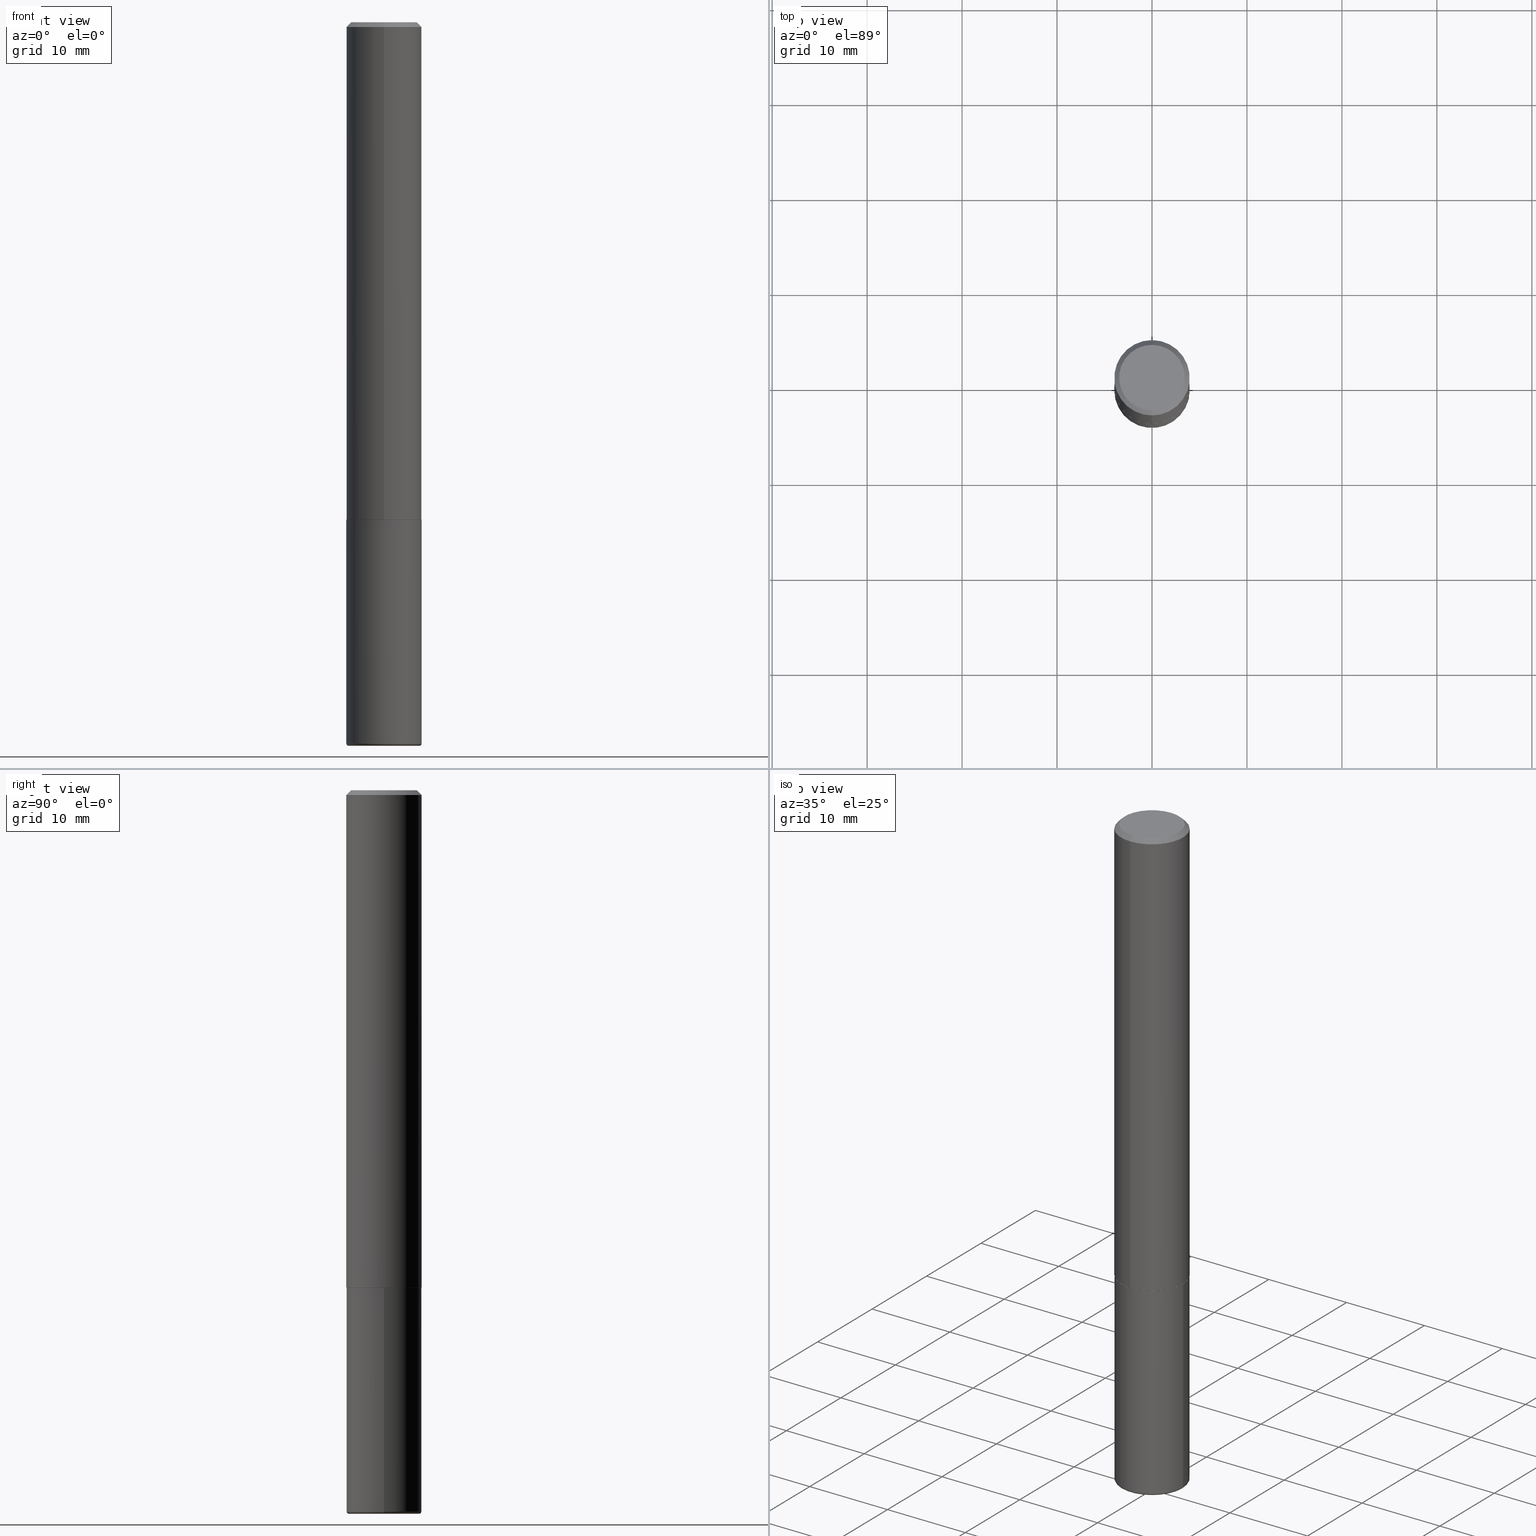
[diagram: canonical four-view strip — front | top / right | iso, engineering-drawing reading convention]
A machine part, canonical four-view strip (front | top / right | iso — engineering-drawing reading convention). The complete STEP part file that produces these views, byte-faithful:
ISO-10303-21;
HEADER;
FILE_DESCRIPTION (( 'STEP AP203' ),
    '1' );
FILE_NAME ('37451.STEP',
    '2024-03-02T01:34:21',
    ( '' ),
    ( '' ),
    'SwSTEP 2.0',
    'SolidWorks 2023',
    '' );
FILE_SCHEMA (( 'CONFIG_CONTROL_DESIGN' ));
ENDSEC;

DATA;
#1 = ORIENTED_EDGE ( 'NONE', *, *, #391, .T. ) ;
#2 = CIRCLE ( 'NONE', #186, 0.1562500000000002776 ) ;
#3 = CARTESIAN_POINT ( 'NONE',  ( 2.190428889620163364E-45, -3.128101894001013777E-31, -8.958164292007245599E-17 ) ) ;
#4 = CC_DESIGN_PERSON_AND_ORGANIZATION_ASSIGNMENT ( #103, #36, ( #142 ) ) ;
#5 = APPROVAL_DATE_TIME ( #163, #128 ) ;
#6 = DATE_TIME_ROLE ( 'creation_date' ) ;
#7 = DIMENSIONAL_EXPONENTS ( 1.000000000000000000, 0.000000000000000000, 0.000000000000000000, 0.000000000000000000, 0.000000000000000000, 0.000000000000000000, 0.000000000000000000 ) ;
#8 = CIRCLE ( 'NONE', #195, 0.1562500000000000000 ) ;
#9 = CIRCLE ( 'NONE', #63, 0.1552499999999999991 ) ;
#10 = ORIENTED_EDGE ( 'NONE', *, *, #179, .T. ) ;
#11 = CARTESIAN_POINT ( 'NONE',  ( -0.1562500000000000000, -7.710131707627340889E-15, -2.062500000000000000 ) ) ;
#12 = CIRCLE ( 'NONE', #74, 0.1562500000000000000 ) ;
#13 = VECTOR ( 'NONE', #159, 39.37007874015748854 ) ;
#14 = CC_DESIGN_APPROVAL ( #128, ( #142 ) ) ;
#15 = CARTESIAN_POINT ( 'NONE',  ( -1.091087918388479962E-15, -0.1562500000000001388, 5.456094630612559989E-16 ) ) ;
#16 = CC_DESIGN_PERSON_AND_ORGANIZATION_ASSIGNMENT ( #395, #329, ( #360 ) ) ;
#17 = CALENDAR_DATE ( 2024, 1, 3 ) ;
#18 = ORIENTED_EDGE ( 'NONE', *, *, #54, .T. ) ;
#19 = DIRECTION ( 'NONE',  ( 4.937700262164540942E-15, 0.7071067811865441310, -0.7071067811865509034 ) ) ;
#20 = LINE ( 'NONE', #306, #39 ) ;
#21 = VERTEX_POINT ( 'NONE', #384 ) ;
#22 = AXIS2_PLACEMENT_3D ( 'NONE', #231, #394, #110 ) ;
#23 = CARTESIAN_POINT ( 'NONE',  ( 5.043175630159489045E-29, -7.202044912408573467E-15, -2.062500000000000000 ) ) ;
#24 = EDGE_CURVE ( 'NONE', #55, #41, #253, .T. ) ;
#25 = CARTESIAN_POINT ( 'NONE',  ( 1.091087918388479568E-15, 0.1562499999999999445, -0.02000000000000057981 ) ) ;
#26 = VERTEX_POINT ( 'NONE', #158 ) ;
#27 = ORIENTED_EDGE ( 'NONE', *, *, #179, .F. ) ;
#28 = DIRECTION ( 'NONE',  ( -6.982962677686265922E-15, -1.000000000000000000, 3.496765431890250609E-15 ) ) ;
#29 = ORIENTED_EDGE ( 'NONE', *, *, #202, .T. ) ;
#30 = DIRECTION ( 'NONE',  ( -2.445176063107630933E-29, 3.491900563592034843E-15, 1.000000000000000000 ) ) ;
#31 = LOCAL_TIME ( 20, 34, 21.00000000000000000, #198 ) ;
#32 = CARTESIAN_POINT ( 'NONE',  ( 1.110223024625157329E-15, 0.1562500000000001388, -5.456094630612559989E-16 ) ) ;
#33 = EDGE_LOOP ( 'NONE', ( #64, #313 ) ) ;
#34 = DIRECTION ( 'NONE',  ( -6.982962677686265922E-15, -1.000000000000000000, 3.519288880726909138E-15 ) ) ;
#35 = CYLINDRICAL_SURFACE ( 'NONE', #214, 0.1562500000000001388 ) ;
#36 = PERSON_AND_ORGANIZATION_ROLE ( 'creator' ) ;
#37 = EDGE_CURVE ( 'NONE', #273, #378, #66, .T. ) ;
#38 = DATE_TIME_ROLE ( 'classification_date' ) ;
#39 = VECTOR ( 'NONE', #19, 39.37007874015748143 ) ;
#40 = CONICAL_SURFACE ( 'NONE', #390, 0.1552499999999999991, 0.7853981633974141952 ) ;
#41 = VERTEX_POINT ( 'NONE', #417 ) ;
#42 = PERSON_AND_ORGANIZATION ( #382, #366 ) ;
#43 = ORIENTED_EDGE ( 'NONE', *, *, #418, .T. ) ;
#44 = DIRECTION ( 'NONE',  ( -2.445176063107630933E-29, 3.491900563592034843E-15, 1.000000000000000000 ) ) ;
#45 = FACE_OUTER_BOUND ( 'NONE', #146, .T. ) ;
#46 = ADVANCED_FACE ( 'NONE', ( #197 ), #82, .T. ) ;
#47 = APPLICATION_CONTEXT ( 'configuration controlled 3d designs of mechanical parts and assemblies' ) ;
#48 = DIRECTION ( 'NONE',  ( 7.105427357601001859E-15, 1.000000000000000000, -3.491481338843145583E-15 ) ) ;
#49 = FACE_OUTER_BOUND ( 'NONE', #409, .T. ) ;
#50 = APPROVAL_STATUS ( 'not_yet_approved' ) ;
#51 = DIRECTION ( 'NONE',  ( 1.000000000000000000, -6.982962677686272233E-15, 4.883557194083114583E-29 ) ) ;
#52 = LENGTH_MEASURE_WITH_UNIT ( LENGTH_MEASURE( 0.02539999999999999897 ), #124 );
#53 = ORIENTED_EDGE ( 'NONE', *, *, #298, .F. ) ;
#54 = EDGE_CURVE ( 'NONE', #359, #273, #347, .T. ) ;
#55 = VERTEX_POINT ( 'NONE', #265 ) ;
#56 = CLOSED_SHELL ( 'NONE', ( #318, #284, #307, #173, #72, #296, #126, #165 ) ) ;
#57 = CYLINDRICAL_SURFACE ( 'NONE', #327, 0.1562500000000000000 ) ;
#58 = CIRCLE ( 'NONE', #207, 0.1362500000000001210 ) ;
#59 = EDGE_CURVE ( 'NONE', #279, #378, #341, .T. ) ;
#60 = ORIENTED_EDGE ( 'NONE', *, *, #315, .F. ) ;
#61 = DIRECTION ( 'NONE',  ( -6.982962677686265922E-15, -1.000000000000000000, 3.491900563592034843E-15 ) ) ;
#62 = VECTOR ( 'NONE', #274, 39.37007874015748143 ) ;
#63 = AXIS2_PLACEMENT_3D ( 'NONE', #90, #285, #376 ) ;
#64 = ORIENTED_EDGE ( 'NONE', *, *, #298, .T. ) ;
#65 = CARTESIAN_POINT ( 'NONE',  ( -1.084104955710742475E-15, -0.1552500000000072156, -2.062500000000000000 ) ) ;
#66 = LINE ( 'NONE', #32, #354 ) ;
#67 = FACE_OUTER_BOUND ( 'NONE', #321, .T. ) ;
#68 = DIRECTION ( 'NONE',  ( 0.000000000000000000, 0.000000000000000000, 1.000000000000000000 ) ) ;
#69 = DIRECTION ( 'NONE',  ( -6.982962677686265133E-15, -1.000000000000000000, 3.496765431890256920E-15 ) ) ;
#70 = CARTESIAN_POINT ( 'NONE',  ( 0.000000000000000000, 0.000000000000000000, 0.000000000000000000 ) ) ;
#71 = CARTESIAN_POINT ( 'NONE',  ( 7.336406418555409790E-29, -1.047444401652943635E-14, -3.000000000000000444 ) ) ;
#72 = ADVANCED_FACE ( 'NONE', ( #200 ), #35, .T. ) ;
#73 = CALENDAR_DATE ( 2024, 1, 3 ) ;
#74 = AXIS2_PLACEMENT_3D ( 'NONE', #338, #401, #270 ) ;
#75 = CC_DESIGN_APPROVAL ( #388, ( #406 ) ) ;
#76 = AXIS2_PLACEMENT_3D ( 'NONE', #210, #48, #211 ) ;
#77 = AXIS2_PLACEMENT_3D ( 'NONE', #372, #182, #28 ) ;
#78 = PERSON_AND_ORGANIZATION_ROLE ( 'creator' ) ;
#79 = CC_DESIGN_PERSON_AND_ORGANIZATION_ASSIGNMENT ( #237, #78, ( #170 ) ) ;
#80 = UNCERTAINTY_MEASURE_WITH_UNIT (LENGTH_MEASURE( 1.000000000000000082E-05 ), #337, 'distance_accuracy_value', 'NONE');
#81 = DIRECTION ( 'NONE',  ( 2.438088387897960049E-29, -3.491481338843145188E-15, -1.000000000000000000 ) ) ;
#82 = TOROIDAL_SURFACE ( 'NONE', #141, 0.1462500000000000189, 0.01000000000000008174 ) ;
#83 = LOCAL_TIME ( 20, 34, 21.00000000000000000, #392 ) ;
#84 = PLANE ( 'NONE',  #161 ) ;
#85 = DIRECTION ( 'NONE',  ( -1.000000000000000000, 6.982962677686265922E-15, -4.876176775795935793E-29 ) ) ;
#86 = ORIENTED_EDGE ( 'NONE', *, *, #397, .T. ) ;
#87 = CARTESIAN_POINT ( 'NONE',  ( 0.1562500000000000000, -1.091087918388479174E-15, 7.619026212181150377E-30 ) ) ;
#88 = EDGE_LOOP ( 'NONE', ( #349, #331, #152, #362 ) ) ;
#89 = DIRECTION ( 'NONE',  ( 2.445176063107630653E-29, -3.491900563592034843E-15, -1.000000000000000000 ) ) ;
#90 = CARTESIAN_POINT ( 'NONE',  ( 5.043175630159490166E-29, -7.202044912408575044E-15, -2.062500000000000444 ) ) ;
#91 = SECURITY_CLASSIFICATION_LEVEL ( 'unclassified' ) ;
#92 = VECTOR ( 'NONE', #180, 39.37007874015748854 ) ;
#93 = EDGE_LOOP ( 'NONE', ( #251, #157, #43, #258 ) ) ;
#94 = PERSON_AND_ORGANIZATION_ROLE ( 'classification_officer' ) ;
#95 = APPLICATION_CONTEXT ( 'configuration controlled 3d designs of mechanical parts and assemblies' ) ;
#96 = ORIENTED_EDGE ( 'NONE', *, *, #230, .T. ) ;
#97 = DIRECTION ( 'NONE',  ( 6.982962677686265133E-15, 1.000000000000000000, -3.496765431890256920E-15 ) ) ;
#98 = CARTESIAN_POINT ( 'NONE',  ( 4.890352126215269679E-31, -6.983801127184080238E-17, -0.02000000000000003511 ) ) ;
#99 = AXIS2_PLACEMENT_3D ( 'NONE', #361, #212, #85 ) ;
#100 = CC_DESIGN_DATE_AND_TIME_ASSIGNMENT ( #275, #6, ( #170 ) ) ;
#101 = DIRECTION ( 'NONE',  ( 1.000000000000000000, -6.982962677686272233E-15, 4.883557194083114583E-29 ) ) ;
#102 = VERTEX_POINT ( 'NONE', #332 ) ;
#103 = PERSON_AND_ORGANIZATION ( #382, #366 ) ;
#104 = AXIS2_PLACEMENT_3D ( 'NONE', #405, #89, #144 ) ;
#105 = AXIS2_PLACEMENT_3D ( 'NONE', #70, #377, #264 ) ;
#106 = APPROVAL ( #396, 'UNSPECIFIED' ) ;
#107 = CALENDAR_DATE ( 2024, 1, 3 ) ;
#108 = CARTESIAN_POINT ( 'NONE',  ( 7.311951730493558245E-29, -1.043952920314100628E-14, -2.990000000000000213 ) ) ;
#109 = APPLICATION_PROTOCOL_DEFINITION ( 'international standard', 'config_control_design', 1994, #95 ) ;
#110 = DIRECTION ( 'NONE',  ( 1.000000000000000000, -6.982962677686266711E-15, 4.876176775795936353E-29 ) ) ;
#111 = DESIGN_CONTEXT ( 'detailed design', #95, 'design' ) ;
#112 = APPROVAL_DATE_TIME ( #358, #106 ) ;
#113 = LOCAL_TIME ( 20, 34, 21.00000000000000000, #301 ) ;
#114 = MANIFOLD_SOLID_BREP ( 'Body-Move/Copy2[1]', #130 ) ;
#115 = EDGE_CURVE ( 'NONE', #151, #282, #320, .T. ) ;
#116 = PRODUCT_RELATED_PRODUCT_CATEGORY ( 'detail', '', ( #360 ) ) ;
#117 = EDGE_LOOP ( 'NONE', ( #325, #138, #407, #283 ) ) ;
#118 = DIRECTION ( 'NONE',  ( 1.000000000000000000, -6.982962677686270655E-15, 0.000000000000000000 ) ) ;
#119 = CIRCLE ( 'NONE', #288, 0.1362500000000001210 ) ;
#120 = CARTESIAN_POINT ( 'NONE',  ( -0.1562500000000000000, 1.110223024625156540E-15, -7.685836078523291160E-30 ) ) ;
#121 = EDGE_CURVE ( 'NONE', #378, #279, #8, .T. ) ;
#122 = DIRECTION ( 'NONE',  ( -2.445176063107630933E-29, 3.491900563592034843E-15, 1.000000000000000000 ) ) ;
#123 = AXIS2_PLACEMENT_3D ( 'NONE', #227, #350, #69 ) ;
#124 =( LENGTH_UNIT ( ) NAMED_UNIT ( * ) SI_UNIT ( $, .METRE. ) );
#125 = ORIENTED_EDGE ( 'NONE', *, *, #213, .F. ) ;
#126 = ADVANCED_FACE ( 'NONE', ( #249 ), #84, .F. ) ;
#127 = DIRECTION ( 'NONE',  ( -2.445468806185136597E-29, 3.491481338843145583E-15, 1.000000000000000000 ) ) ;
#128 = APPROVAL ( #50, 'UNSPECIFIED' ) ;
#129 = FACE_OUTER_BOUND ( 'NONE', #196, .T. ) ;
#130 = CLOSED_SHELL ( 'NONE', ( #232, #46, #260, #281, #368, #149 ) ) ;
#131 = CONICAL_SURFACE ( 'NONE', #169, 0.1562500000000000000, 0.7853981633974469467 ) ;
#132 = CARTESIAN_POINT ( 'NONE',  ( 5.043779412756844791E-29, -7.201180261363988578E-15, -2.062500000000000000 ) ) ;
#133 = CARTESIAN_POINT ( 'NONE',  ( 0.1562500000000000000, -8.292268179752468540E-15, -2.062500000000000000 ) ) ;
#134 = DIRECTION ( 'NONE',  ( 1.000000000000000000, -6.982962677686287221E-15, 0.000000000000000000 ) ) ;
#135 = EDGE_CURVE ( 'NONE', #26, #282, #217, .T. ) ;
#136 = DIRECTION ( 'NONE',  ( -6.982962677686265922E-15, -1.000000000000000000, 3.491900563592035238E-15 ) ) ;
#137 = CC_DESIGN_PERSON_AND_ORGANIZATION_ASSIGNMENT ( #326, #94, ( #406 ) ) ;
#138 = ORIENTED_EDGE ( 'NONE', *, *, #356, .T. ) ;
#139 = FACE_OUTER_BOUND ( 'NONE', #221, .T. ) ;
#140 = APPROVAL_ROLE ( '' ) ;
#141 = AXIS2_PLACEMENT_3D ( 'NONE', #108, #261, #101 ) ;
#142 = PRODUCT_DEFINITION_FORMATION_WITH_SPECIFIED_SOURCE ( 'ANY', '', #360, .NOT_KNOWN. ) ;
#143 = CARTESIAN_POINT ( 'NONE',  ( 2.190428889620163364E-45, -3.128101894001013777E-31, -8.958164292007245599E-17 ) ) ;
#144 = DIRECTION ( 'NONE',  ( 6.982962677686265922E-15, 1.000000000000000000, -3.491900563592034843E-15 ) ) ;
#145 = EDGE_CURVE ( 'NONE', #102, #378, #20, .T. ) ;
#146 = EDGE_LOOP ( 'NONE', ( #10, #150, #53, #172 ) ) ;
#147 = CARTESIAN_POINT ( 'NONE',  ( 5.040730454096381281E-29, -7.198553011844980434E-15, -2.061500000000000110 ) ) ;
#148 = EDGE_CURVE ( 'NONE', #403, #151, #174, .T. ) ;
#149 = ADVANCED_FACE ( 'NONE', ( #278 ), #240, .T. ) ;
#150 = ORIENTED_EDGE ( 'NONE', *, *, #148, .T. ) ;
#151 = VERTEX_POINT ( 'NONE', #11 ) ;
#152 = ORIENTED_EDGE ( 'NONE', *, *, #59, .T. ) ;
#153 = DIRECTION ( 'NONE',  ( -2.445468806185136597E-29, 3.491481338843145583E-15, 1.000000000000000000 ) ) ;
#154 = AXIS2_PLACEMENT_3D ( 'NONE', #385, #344, #188 ) ;
#155 = ORIENTED_EDGE ( 'NONE', *, *, #24, .F. ) ;
#156 = CC_DESIGN_DATE_AND_TIME_ASSIGNMENT ( #415, #38, ( #406 ) ) ;
#157 = ORIENTED_EDGE ( 'NONE', *, *, #315, .T. ) ;
#158 = CARTESIAN_POINT ( 'NONE',  ( 0.1562500000000000278, -1.153061712152948940E-14, -2.990000000000000657 ) ) ;
#159 = DIRECTION ( 'NONE',  ( 5.024295867787889629E-15, 0.7071067811865257013, 0.7071067811865691111 ) ) ;
#160 = CYLINDRICAL_SURFACE ( 'NONE', #105, 0.1562500000000001388 ) ;
#161 = AXIS2_PLACEMENT_3D ( 'NONE', #23, #357, #336 ) ;
#162 = DIRECTION ( 'NONE',  ( -6.982962677686265922E-15, -1.000000000000000000, 3.491900563592034843E-15 ) ) ;
#163 = DATE_AND_TIME ( #73, #31 ) ;
#164 = CARTESIAN_POINT ( 'NONE',  ( -1.071952812151801215E-15, -0.1562500000000000833, -0.01999999999999948694 ) ) ;
#165 = ADVANCED_FACE ( 'NONE', ( #139 ), #276, .F. ) ;
#166 = CARTESIAN_POINT ( 'NONE',  ( 0.000000000000000000, 0.000000000000000000, 0.000000000000000000 ) ) ;
#167 = AXIS2_PLACEMENT_3D ( 'NONE', #266, #351, #134 ) ;
#168 = APPROVAL_STATUS ( 'not_yet_approved' ) ;
#169 = AXIS2_PLACEMENT_3D ( 'NONE', #98, #223, #97 ) ;
#170 = PRODUCT_DEFINITION ( 'UNKNOWN', '', #142, #111 ) ;
#171 = DIRECTION ( 'NONE',  ( 1.000000000000000000, -6.982962677686270655E-15, 0.000000000000000000 ) ) ;
#172 = ORIENTED_EDGE ( 'NONE', *, *, #135, .F. ) ;
#173 = ADVANCED_FACE ( 'NONE', ( #49 ), #398, .T. ) ;
#174 = LINE ( 'NONE', #120, #352 ) ;
#175 = ORIENTED_EDGE ( 'NONE', *, *, #37, .T. ) ;
#176 = DIRECTION ( 'NONE',  ( -2.445468806185136877E-29, 3.491481338843145188E-15, 1.000000000000000000 ) ) ;
#177 = CALENDAR_DATE ( 2024, 1, 3 ) ;
#178 = CIRCLE ( 'NONE', #76, 0.01000000000000006439 ) ;
#179 = EDGE_CURVE ( 'NONE', #26, #403, #12, .T. ) ;
#180 = DIRECTION ( 'NONE',  ( -4.937700262164378437E-15, -0.7071067811865208164, 0.7071067811865739960 ) ) ;
#181 = DIRECTION ( 'NONE',  ( 1.000000000000000000, -6.982962677686269077E-15, 0.000000000000000000 ) ) ;
#182 = DIRECTION ( 'NONE',  ( -2.445176063107630933E-29, 3.491900563592034843E-15, 1.000000000000000000 ) ) ;
#183 = LINE ( 'NONE', #15, #62 ) ;
#184 = CARTESIAN_POINT ( 'NONE',  ( 0.000000000000000000, 0.000000000000000000, 0.000000000000000000 ) ) ;
#185 = ORIENTED_EDGE ( 'NONE', *, *, #59, .F. ) ;
#186 = AXIS2_PLACEMENT_3D ( 'NONE', #147, #257, #190 ) ;
#187 = ORIENTED_EDGE ( 'NONE', *, *, #121, .F. ) ;
#188 = DIRECTION ( 'NONE',  ( -6.982962677686265922E-15, -1.000000000000000000, 3.519288880726909138E-15 ) ) ;
#189 = EDGE_CURVE ( 'NONE', #41, #403, #178, .T. ) ;
#190 = DIRECTION ( 'NONE',  ( -6.982962677686265922E-15, -1.000000000000000000, 3.496765431890250609E-15 ) ) ;
#191 = LINE ( 'NONE', #218, #92 ) ;
#192 = ORIENTED_EDGE ( 'NONE', *, *, #391, .F. ) ;
#193 = CARTESIAN_POINT ( 'NONE',  ( 5.043175630159490166E-29, -7.202044912408575044E-15, -2.062500000000000444 ) ) ;
#194 = DIRECTION ( 'NONE',  ( 1.000000000000000000, -6.982962677686262766E-15, 0.000000000000000000 ) ) ;
#195 = AXIS2_PLACEMENT_3D ( 'NONE', #309, #44, #216 ) ;
#196 = EDGE_LOOP ( 'NONE', ( #86, #18, #192, #242 ) ) ;
#197 = FACE_OUTER_BOUND ( 'NONE', #370, .T. ) ;
#198 = COORDINATED_UNIVERSAL_TIME_OFFSET ( 5, 0, .BEHIND. ) ;
#199 = DIRECTION ( 'NONE',  ( 1.000000000000000000, 0.000000000000000000, 0.000000000000000000 ) ) ;
#200 = FACE_OUTER_BOUND ( 'NONE', #206, .T. ) ;
#201 = DIRECTION ( 'NONE',  ( -2.445468806185136597E-29, 3.491481338843145583E-15, 1.000000000000000000 ) ) ;
#202 = EDGE_CURVE ( 'NONE', #248, #279, #183, .T. ) ;
#203 = CYLINDRICAL_SURFACE ( 'NONE', #22, 0.1562500000000000000 ) ;
#204 = CC_DESIGN_APPROVAL ( #106, ( #170 ) ) ;
#205 = PERSON_AND_ORGANIZATION ( #382, #366 ) ;
#206 = EDGE_LOOP ( 'NONE', ( #413, #373, #29, #187 ) ) ;
#207 = AXIS2_PLACEMENT_3D ( 'NONE', #3, #122, #61 ) ;
#208 = ORIENTED_EDGE ( 'NONE', *, *, #340, .T. ) ;
#209 = ORIENTED_EDGE ( 'NONE', *, *, #189, .F. ) ;
#210 = CARTESIAN_POINT ( 'NONE',  ( -0.1462500000000000189, -9.400360452091859823E-15, -2.990000000000000213 ) ) ;
#211 = DIRECTION ( 'NONE',  ( -1.000000000000000000, 7.105427357601074434E-15, 0.000000000000000000 ) ) ;
#212 = DIRECTION ( 'NONE',  ( 2.438088387897960049E-29, -3.491481338843145188E-15, -1.000000000000000000 ) ) ;
#213 = EDGE_CURVE ( 'NONE', #102, #21, #119, .T. ) ;
#214 = AXIS2_PLACEMENT_3D ( 'NONE', #166, #297, #136 ) ;
#215 = TOROIDAL_SURFACE ( 'NONE', #355, 0.1462500000000000189, 0.01000000000000008174 ) ;
#216 = DIRECTION ( 'NONE',  ( -6.982962677686265133E-15, -1.000000000000000000, 3.496765431890256920E-15 ) ) ;
#217 = LINE ( 'NONE', #87, #245 ) ;
#218 = CARTESIAN_POINT ( 'NONE',  ( -1.084104955710742475E-15, -0.1552500000000072156, -2.062500000000000000 ) ) ;
#219 = EDGE_LOOP ( 'NONE', ( #1, #175, #185, #343 ) ) ;
#220 = LINE ( 'NONE', #164, #238 ) ;
#221 = EDGE_LOOP ( 'NONE', ( #380, #208 ) ) ;
#222 = CARTESIAN_POINT ( 'NONE',  ( 1.106670310946407312E-15, 0.1552499999999928104, -2.062500000000000888 ) ) ;
#223 = DIRECTION ( 'NONE',  ( 2.445176063107630933E-29, -3.491900563592034843E-15, -1.000000000000000000 ) ) ;
#224 = AXIS2_PLACEMENT_3D ( 'NONE', #71, #201, #118 ) ;
#225 = CIRCLE ( 'NONE', #310, 0.1562500000000000000 ) ;
#226 = DIRECTION ( 'NONE',  ( -6.982962677686265922E-15, -1.000000000000000000, 3.519288880726909138E-15 ) ) ;
#227 = CARTESIAN_POINT ( 'NONE',  ( 4.890352126215269679E-31, -6.983801127184080238E-17, -0.02000000000000003511 ) ) ;
#228 = EDGE_CURVE ( 'NONE', #55, #26, #345, .T. ) ;
#229 = MECHANICAL_CONTEXT ( 'NONE', #47, 'mechanical' ) ;
#230 = EDGE_CURVE ( 'NONE', #41, #55, #404, .T. ) ;
#231 = CARTESIAN_POINT ( 'NONE',  ( 0.000000000000000000, 0.000000000000000000, 0.000000000000000000 ) ) ;
#232 = ADVANCED_FACE ( 'NONE', ( #45 ), #57, .T. ) ;
#233 = DATE_AND_TIME ( #107, #83 ) ;
#234 = COORDINATED_UNIVERSAL_TIME_OFFSET ( 5, 0, .BEHIND. ) ;
#235 = FACE_OUTER_BOUND ( 'NONE', #219, .T. ) ;
#236 = ORIENTED_EDGE ( 'NONE', *, *, #230, .F. ) ;
#237 = PERSON_AND_ORGANIZATION ( #382, #366 ) ;
#238 = VECTOR ( 'NONE', #393, 39.37007874015748143 ) ;
#239 = ORIENTED_EDGE ( 'NONE', *, *, #397, .F. ) ;
#240 = PLANE ( 'NONE',  #262 ) ;
#241 = EDGE_LOOP ( 'NONE', ( #239, #60 ) ) ;
#242 = ORIENTED_EDGE ( 'NONE', *, *, #418, .F. ) ;
#243 = PLANE ( 'NONE',  #99 ) ;
#244 = CARTESIAN_POINT ( 'NONE',  ( 5.043779412756844791E-29, -7.201180261363988578E-15, -2.062500000000000000 ) ) ;
#245 = VECTOR ( 'NONE', #176, 39.37007874015748143 ) ;
#246 = CC_DESIGN_SECURITY_CLASSIFICATION ( #406, ( #142 ) ) ;
#247 = DIRECTION ( 'NONE',  ( 6.982962677686265133E-15, 1.000000000000000000, -3.496765431890256920E-15 ) ) ;
#248 = VERTEX_POINT ( 'NONE', #312 ) ;
#249 = FACE_OUTER_BOUND ( 'NONE', #241, .T. ) ;
#250 = DIRECTION ( 'NONE',  ( -2.445468806185136597E-29, 3.491481338843145583E-15, 1.000000000000000000 ) ) ;
#251 = ORIENTED_EDGE ( 'NONE', *, *, #54, .F. ) ;
#252 = MANIFOLD_SOLID_BREP ( 'Body-Move/Copy2[2]', #56 ) ;
#253 = CIRCLE ( 'NONE', #271, 0.1462500000000000189 ) ;
#254 = AXIS2_PLACEMENT_3D ( 'NONE', #333, #302, #247 ) ;
#255 = CIRCLE ( 'NONE', #342, 0.1552499999999999991 ) ;
#256 = CARTESIAN_POINT ( 'NONE',  ( 5.043175630159490166E-29, -7.202044912408575044E-15, -2.062500000000000444 ) ) ;
#257 = DIRECTION ( 'NONE',  ( -2.445176063107630933E-29, 3.491900563592034843E-15, 1.000000000000000000 ) ) ;
#258 = ORIENTED_EDGE ( 'NONE', *, *, #389, .F. ) ;
#259 = DIRECTION ( 'NONE',  ( 1.000000000000000000, -6.982962677686269077E-15, 0.000000000000000000 ) ) ;
#260 = ADVANCED_FACE ( 'NONE', ( #410 ), #243, .F. ) ;
#261 = DIRECTION ( 'NONE',  ( -2.445468806185136597E-29, 3.491481338843145583E-15, 1.000000000000000000 ) ) ;
#262 = AXIS2_PLACEMENT_3D ( 'NONE', #365, #81, #300 ) ;
#263 = CIRCLE ( 'NONE', #399, 0.1562500000000000000 ) ;
#264 = DIRECTION ( 'NONE',  ( -6.982962677686265922E-15, -1.000000000000000000, 3.491900563592035238E-15 ) ) ;
#265 = CARTESIAN_POINT ( 'NONE',  ( 0.1462500000000000189, -1.149570230814105460E-14, -3.000000000000000444 ) ) ;
#266 = CARTESIAN_POINT ( 'NONE',  ( 0.1462500000000000189, -1.146078749475262295E-14, -2.990000000000000213 ) ) ;
#267 = LOCAL_TIME ( 20, 34, 21.00000000000000000, #346 ) ;
#268 = FACE_OUTER_BOUND ( 'NONE', #117, .T. ) ;
#269 = CARTESIAN_POINT ( 'NONE',  ( -1.071952812151801215E-15, -0.1562500000000000833, -0.01999999999999948694 ) ) ;
#270 = DIRECTION ( 'NONE',  ( 1.000000000000000000, -6.982962677686262766E-15, 0.000000000000000000 ) ) ;
#271 = AXIS2_PLACEMENT_3D ( 'NONE', #322, #292, #171 ) ;
#272 = LOCAL_TIME ( 20, 34, 21.00000000000000000, #234 ) ;
#273 = VERTEX_POINT ( 'NONE', #402 ) ;
#274 = DIRECTION ( 'NONE',  ( -2.445176063107631214E-29, 3.491900563592034843E-15, 1.000000000000000000 ) ) ;
#275 = DATE_AND_TIME ( #177, #113 ) ;
#276 = PLANE ( 'NONE',  #104 ) ;
#277 = CARTESIAN_POINT ( 'NONE',  ( -0.1562500000000000278, -9.329306178515851319E-15, -2.990000000000000657 ) ) ;
#278 = FACE_OUTER_BOUND ( 'NONE', #287, .T. ) ;
#279 = VERTEX_POINT ( 'NONE', #269 ) ;
#280 = DIRECTION ( 'NONE',  ( -2.445468806185136877E-29, 3.491481338843145188E-15, 1.000000000000000000 ) ) ;
#281 = ADVANCED_FACE ( 'NONE', ( #268 ), #203, .T. ) ;
#282 = VERTEX_POINT ( 'NONE', #133 ) ;
#283 = ORIENTED_EDGE ( 'NONE', *, *, #115, .F. ) ;
#284 = ADVANCED_FACE ( 'NONE', ( #235 ), #160, .T. ) ;
#285 = DIRECTION ( 'NONE',  ( -2.445176063107630933E-29, 3.491900563592034843E-15, 1.000000000000000000 ) ) ;
#286 = ORIENTED_EDGE ( 'NONE', *, *, #24, .T. ) ;
#287 = EDGE_LOOP ( 'NONE', ( #155, #236 ) ) ;
#288 = AXIS2_PLACEMENT_3D ( 'NONE', #143, #400, #162 ) ;
#289 =( GEOMETRIC_REPRESENTATION_CONTEXT ( 3 ) GLOBAL_UNCERTAINTY_ASSIGNED_CONTEXT ( ( #80 ) ) GLOBAL_UNIT_ASSIGNED_CONTEXT ( ( #337, #311, #308 ) ) REPRESENTATION_CONTEXT ( 'NONE', 'WORKASPACE' ) );
#290 = APPROVAL_ROLE ( '' ) ;
#291 = DIRECTION ( 'NONE',  ( -2.445176063107631214E-29, 3.491900563592034843E-15, 1.000000000000000000 ) ) ;
#292 = DIRECTION ( 'NONE',  ( -2.445468806185136597E-29, 3.491481338843145583E-15, 1.000000000000000000 ) ) ;
#293 = AXIS2_PLACEMENT_3D ( 'NONE', #386, #68, #199 ) ;
#294 = APPROVAL_ROLE ( '' ) ;
#295 = PERSON_AND_ORGANIZATION ( #382, #366 ) ;
#296 = ADVANCED_FACE ( 'NONE', ( #416 ), #40, .T. ) ;
#297 = DIRECTION ( 'NONE',  ( -2.445176063107630933E-29, 3.491900563592034843E-15, 1.000000000000000000 ) ) ;
#298 = EDGE_CURVE ( 'NONE', #282, #151, #225, .T. ) ;
#299 = CC_DESIGN_PERSON_AND_ORGANIZATION_ASSIGNMENT ( #205, #381, ( #142 ) ) ;
#300 = DIRECTION ( 'NONE',  ( -1.000000000000000000, 6.982962677686265922E-15, -4.876176775795935793E-29 ) ) ;
#301 = COORDINATED_UNIVERSAL_TIME_OFFSET ( 5, 0, .BEHIND. ) ;
#302 = DIRECTION ( 'NONE',  ( 2.445176063107630933E-29, -3.491900563592034843E-15, -1.000000000000000000 ) ) ;
#303 = PERSON_AND_ORGANIZATION ( #382, #366 ) ;
#304 = APPROVAL_PERSON_ORGANIZATION ( #42, #388, #294 ) ;
#305 = PRODUCT_DEFINITION_SHAPE ( 'NONE', 'NONE',  #170 ) ;
#306 = CARTESIAN_POINT ( 'NONE',  ( 1.091087918388479568E-15, 0.1562499999999999445, -0.02000000000000057981 ) ) ;
#307 = ADVANCED_FACE ( 'NONE', ( #379 ), #131, .T. ) ;
#308 =( NAMED_UNIT ( * ) SI_UNIT ( $, .STERADIAN. ) SOLID_ANGLE_UNIT ( ) );
#309 = CARTESIAN_POINT ( 'NONE',  ( 4.890352126215269679E-31, -6.983801127184080238E-17, -0.02000000000000003511 ) ) ;
#310 = AXIS2_PLACEMENT_3D ( 'NONE', #132, #127, #259 ) ;
#311 =( NAMED_UNIT ( * ) PLANE_ANGLE_UNIT ( ) SI_UNIT ( $, .RADIAN. ) );
#312 = CARTESIAN_POINT ( 'NONE',  ( -1.091087918388430659E-15, -0.1562500000000074940, -2.061499999999999666 ) ) ;
#313 = ORIENTED_EDGE ( 'NONE', *, *, #115, .T. ) ;
#314 = ORIENTED_EDGE ( 'NONE', *, *, #228, .T. ) ;
#315 = EDGE_CURVE ( 'NONE', #359, #339, #255, .T. ) ;
#316 = ORIENTED_EDGE ( 'NONE', *, *, #414, .F. ) ;
#317 = CARTESIAN_POINT ( 'NONE',  ( 7.311951730493558245E-29, -1.043952920314100628E-14, -2.990000000000000213 ) ) ;
#318 = ADVANCED_FACE ( 'NONE', ( #129 ), #328, .T. ) ;
#319 = ORIENTED_EDGE ( 'NONE', *, *, #356, .F. ) ;
#320 = CIRCLE ( 'NONE', #364, 0.1562500000000000000 ) ;
#321 = EDGE_LOOP ( 'NONE', ( #209, #96, #314, #319 ) ) ;
#322 = CARTESIAN_POINT ( 'NONE',  ( 7.336406418555409790E-29, -1.047444401652943635E-14, -3.000000000000000444 ) ) ;
#323 = CARTESIAN_POINT ( 'NONE',  ( 1.103117597267605822E-15, 0.1552499999999928104, -2.062500000000000888 ) ) ;
#324 = ORIENTED_EDGE ( 'NONE', *, *, #145, .T. ) ;
#325 = ORIENTED_EDGE ( 'NONE', *, *, #148, .F. ) ;
#326 = PERSON_AND_ORGANIZATION ( #382, #366 ) ;
#327 = AXIS2_PLACEMENT_3D ( 'NONE', #184, #250, #371 ) ;
#328 = CONICAL_SURFACE ( 'NONE', #154, 0.1552499999999999991, 0.7853981633974141952 ) ;
#329 = PERSON_AND_ORGANIZATION_ROLE ( 'design_owner' ) ;
#330 = CALENDAR_DATE ( 2024, 1, 3 ) ;
#331 = ORIENTED_EDGE ( 'NONE', *, *, #414, .T. ) ;
#332 = CARTESIAN_POINT ( 'NONE',  ( 1.021258291611617059E-15, 0.1362500000000001210, -5.653530947094876156E-16 ) ) ;
#333 = CARTESIAN_POINT ( 'NONE',  ( 4.890352126215269679E-31, -6.983801127184080238E-17, -0.02000000000000003511 ) ) ;
#334 = APPROVAL_PERSON_ORGANIZATION ( #295, #106, #140 ) ;
#335 = ADVANCED_BREP_SHAPE_REPRESENTATION ( '37451', ( #114, #252, #293 ), #289 ) ;
#336 = DIRECTION ( 'NONE',  ( -6.982962677686265922E-15, -1.000000000000000000, 3.491900563592034843E-15 ) ) ;
#337 =( CONVERSION_BASED_UNIT ( 'INCH', #52 ) LENGTH_UNIT ( ) NAMED_UNIT ( #7 ) );
#338 = CARTESIAN_POINT ( 'NONE',  ( 7.311951730493559366E-29, -1.043952920314100786E-14, -2.990000000000000657 ) ) ;
#339 = VERTEX_POINT ( 'NONE', #65 ) ;
#340 = EDGE_CURVE ( 'NONE', #21, #102, #58, .T. ) ;
#341 = CIRCLE ( 'NONE', #123, 0.1562500000000000000 ) ;
#342 = AXIS2_PLACEMENT_3D ( 'NONE', #256, #348, #226 ) ;
#343 = ORIENTED_EDGE ( 'NONE', *, *, #202, .F. ) ;
#344 = DIRECTION ( 'NONE',  ( -2.445176063107630933E-29, 3.491900563592034843E-15, 1.000000000000000000 ) ) ;
#345 = CIRCLE ( 'NONE', #167, 0.01000000000000006439 ) ;
#346 = COORDINATED_UNIVERSAL_TIME_OFFSET ( 5, 0, .BEHIND. ) ;
#347 = LINE ( 'NONE', #323, #13 ) ;
#348 = DIRECTION ( 'NONE',  ( -2.445176063107630933E-29, 3.491900563592034843E-15, 1.000000000000000000 ) ) ;
#349 = ORIENTED_EDGE ( 'NONE', *, *, #340, .F. ) ;
#350 = DIRECTION ( 'NONE',  ( -2.445176063107630933E-29, 3.491900563592034843E-15, 1.000000000000000000 ) ) ;
#351 = DIRECTION ( 'NONE',  ( -6.982962677686266711E-15, -1.000000000000000000, 3.491481338843145583E-15 ) ) ;
#352 = VECTOR ( 'NONE', #280, 39.37007874015748143 ) ;
#353 = APPROVAL_DATE_TIME ( #233, #388 ) ;
#354 = VECTOR ( 'NONE', #291, 39.37007874015748143 ) ;
#355 = AXIS2_PLACEMENT_3D ( 'NONE', #317, #153, #51 ) ;
#356 = EDGE_CURVE ( 'NONE', #403, #26, #263, .T. ) ;
#357 = DIRECTION ( 'NONE',  ( -2.445176063107630653E-29, 3.491900563592034843E-15, 1.000000000000000000 ) ) ;
#358 = DATE_AND_TIME ( #17, #272 ) ;
#359 = VERTEX_POINT ( 'NONE', #222 ) ;
#360 = PRODUCT ( '37451', '37451', '', ( #229 ) ) ;
#361 = CARTESIAN_POINT ( 'NONE',  ( 5.043779412756844791E-29, -7.201180261363988578E-15, -2.062500000000000000 ) ) ;
#362 = ORIENTED_EDGE ( 'NONE', *, *, #145, .F. ) ;
#363 = SHAPE_DEFINITION_REPRESENTATION ( #305, #335 ) ;
#364 = AXIS2_PLACEMENT_3D ( 'NONE', #244, #367, #181 ) ;
#365 = CARTESIAN_POINT ( 'NONE',  ( 7.336406418555409790E-29, -1.047444401652943635E-14, -3.000000000000000444 ) ) ;
#366 = ORGANIZATION ( 'UNSPECIFIED', 'UNSPECIFIED', '' ) ;
#367 = DIRECTION ( 'NONE',  ( -2.445468806185136597E-29, 3.491481338843145583E-15, 1.000000000000000000 ) ) ;
#368 = ADVANCED_FACE ( 'NONE', ( #67 ), #215, .T. ) ;
#369 = ORIENTED_EDGE ( 'NONE', *, *, #228, .F. ) ;
#370 = EDGE_LOOP ( 'NONE', ( #286, #408, #27, #369 ) ) ;
#371 = DIRECTION ( 'NONE',  ( 1.000000000000000000, -6.982962677686266711E-15, 4.876176775795936353E-29 ) ) ;
#372 = CARTESIAN_POINT ( 'NONE',  ( 5.040730454096381281E-29, -7.198553011844980434E-15, -2.061500000000000110 ) ) ;
#373 = ORIENTED_EDGE ( 'NONE', *, *, #389, .T. ) ;
#374 = APPROVAL_PERSON_ORGANIZATION ( #303, #128, #290 ) ;
#375 = DIRECTION ( 'NONE',  ( -2.445468806185136597E-29, 3.491481338843145583E-15, 1.000000000000000000 ) ) ;
#376 = DIRECTION ( 'NONE',  ( -6.982962677686265922E-15, -1.000000000000000000, 3.519288880726909138E-15 ) ) ;
#377 = DIRECTION ( 'NONE',  ( -2.445176063107630933E-29, 3.491900563592034843E-15, 1.000000000000000000 ) ) ;
#378 = VERTEX_POINT ( 'NONE', #25 ) ;
#379 = FACE_OUTER_BOUND ( 'NONE', #88, .T. ) ;
#380 = ORIENTED_EDGE ( 'NONE', *, *, #213, .T. ) ;
#381 = PERSON_AND_ORGANIZATION_ROLE ( 'design_supplier' ) ;
#382 = PERSON ( 'UNSPECIFIED', 'UNSPECIFIED', 'UNSPECIFIED', ('UNSPECIFIED'), ('UNSPECIFIED'), ('UNSPECIFIED') ) ;
#383 = APPLICATION_PROTOCOL_DEFINITION ( 'international standard', 'config_control_design', 1994, #47 ) ;
#384 = CARTESIAN_POINT ( 'NONE',  ( -1.003347832174086672E-15, -0.1362500000000001210, 3.861898088693426789E-16 ) ) ;
#385 = CARTESIAN_POINT ( 'NONE',  ( 5.043175630159490166E-29, -7.202044912408575044E-15, -2.062500000000000444 ) ) ;
#386 = CARTESIAN_POINT ( 'NONE',  ( 0.000000000000000000, 0.000000000000000000, 0.000000000000000000 ) ) ;
#387 = CARTESIAN_POINT ( 'NONE',  ( 7.311951730493559366E-29, -1.043952920314100786E-14, -2.990000000000000657 ) ) ;
#388 = APPROVAL ( #168, 'UNSPECIFIED' ) ;
#389 = EDGE_CURVE ( 'NONE', #273, #248, #2, .T. ) ;
#390 = AXIS2_PLACEMENT_3D ( 'NONE', #193, #30, #34 ) ;
#391 = EDGE_CURVE ( 'NONE', #248, #273, #412, .T. ) ;
#392 = COORDINATED_UNIVERSAL_TIME_OFFSET ( 5, 0, .BEHIND. ) ;
#393 = DIRECTION ( 'NONE',  ( -4.851104656540957175E-15, -0.7071067811865490160, -0.7071067811865460184 ) ) ;
#394 = DIRECTION ( 'NONE',  ( -2.445468806185136597E-29, 3.491481338843145583E-15, 1.000000000000000000 ) ) ;
#395 = PERSON_AND_ORGANIZATION ( #382, #366 ) ;
#396 = APPROVAL_STATUS ( 'not_yet_approved' ) ;
#397 = EDGE_CURVE ( 'NONE', #339, #359, #9, .T. ) ;
#398 = CONICAL_SURFACE ( 'NONE', #254, 0.1562500000000000000, 0.7853981633974469467 ) ;
#399 = AXIS2_PLACEMENT_3D ( 'NONE', #387, #375, #194 ) ;
#400 = DIRECTION ( 'NONE',  ( -2.445176063107630933E-29, 3.491900563592034843E-15, 1.000000000000000000 ) ) ;
#401 = DIRECTION ( 'NONE',  ( -2.445468806185136597E-29, 3.491481338843145583E-15, 1.000000000000000000 ) ) ;
#402 = CARTESIAN_POINT ( 'NONE',  ( 1.110223024625183362E-15, 0.1562499999999930611, -2.061500000000000554 ) ) ;
#403 = VERTEX_POINT ( 'NONE', #277 ) ;
#404 = CIRCLE ( 'NONE', #224, 0.1462500000000000189 ) ;
#405 = CARTESIAN_POINT ( 'NONE',  ( 9.514286648347545493E-16, 0.1362500000000001210, -5.205622732494513937E-16 ) ) ;
#406 = SECURITY_CLASSIFICATION ( '', '', #91 ) ;
#407 = ORIENTED_EDGE ( 'NONE', *, *, #135, .T. ) ;
#408 = ORIENTED_EDGE ( 'NONE', *, *, #189, .T. ) ;
#409 = EDGE_LOOP ( 'NONE', ( #316, #125, #324, #411 ) ) ;
#410 = FACE_OUTER_BOUND ( 'NONE', #33, .T. ) ;
#411 = ORIENTED_EDGE ( 'NONE', *, *, #121, .T. ) ;
#412 = CIRCLE ( 'NONE', #77, 0.1562500000000002776 ) ;
#413 = ORIENTED_EDGE ( 'NONE', *, *, #37, .F. ) ;
#414 = EDGE_CURVE ( 'NONE', #21, #279, #220, .T. ) ;
#415 = DATE_AND_TIME ( #330, #267 ) ;
#416 = FACE_OUTER_BOUND ( 'NONE', #93, .T. ) ;
#417 = CARTESIAN_POINT ( 'NONE',  ( -0.1462500000000000189, -9.382290721998072185E-15, -3.000000000000000444 ) ) ;
#418 = EDGE_CURVE ( 'NONE', #339, #248, #191, .T. ) ;
ENDSEC;
END-ISO-10303-21;
